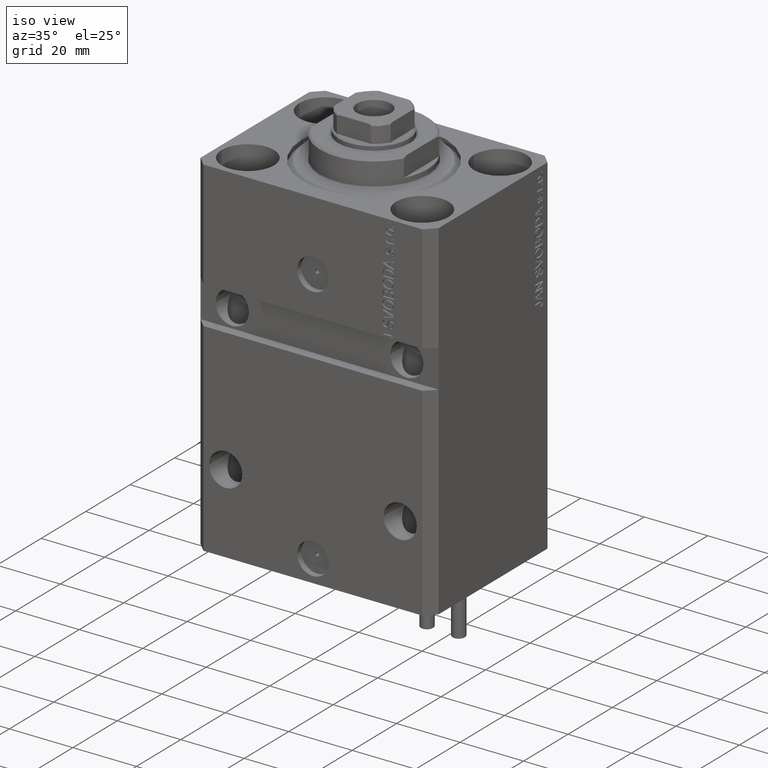
[diagram: clean part render]
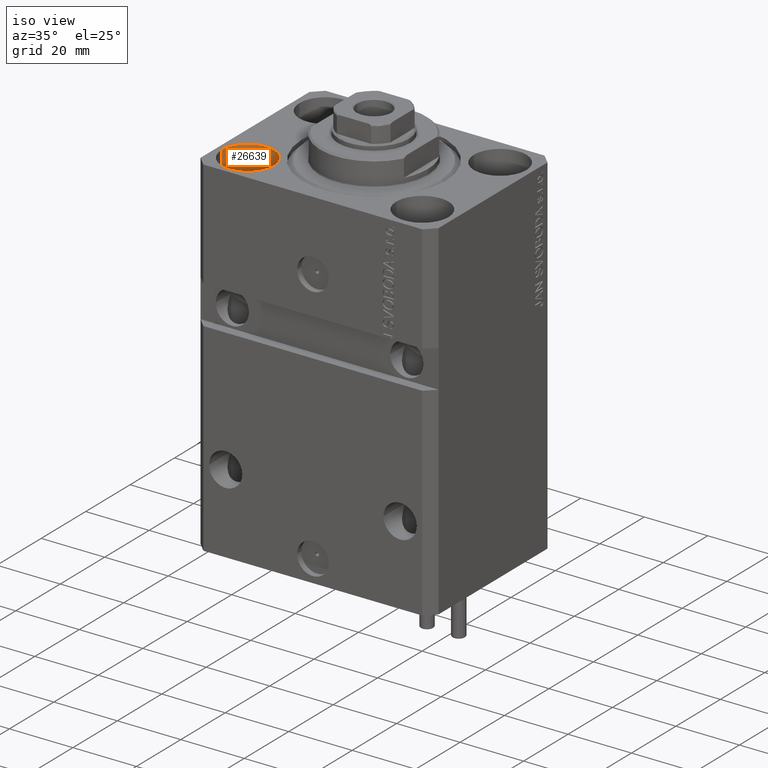
[diagram: same view with one face highlighted and labeled with its STEP entity id]
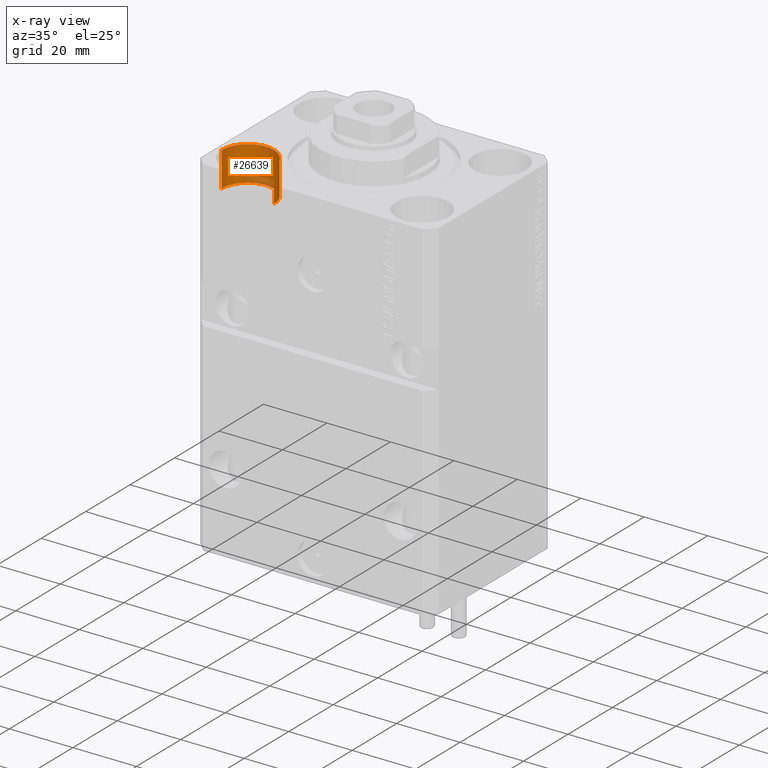
[diagram: x-ray of the same camera — body ghosted, the highlighted face saturated]
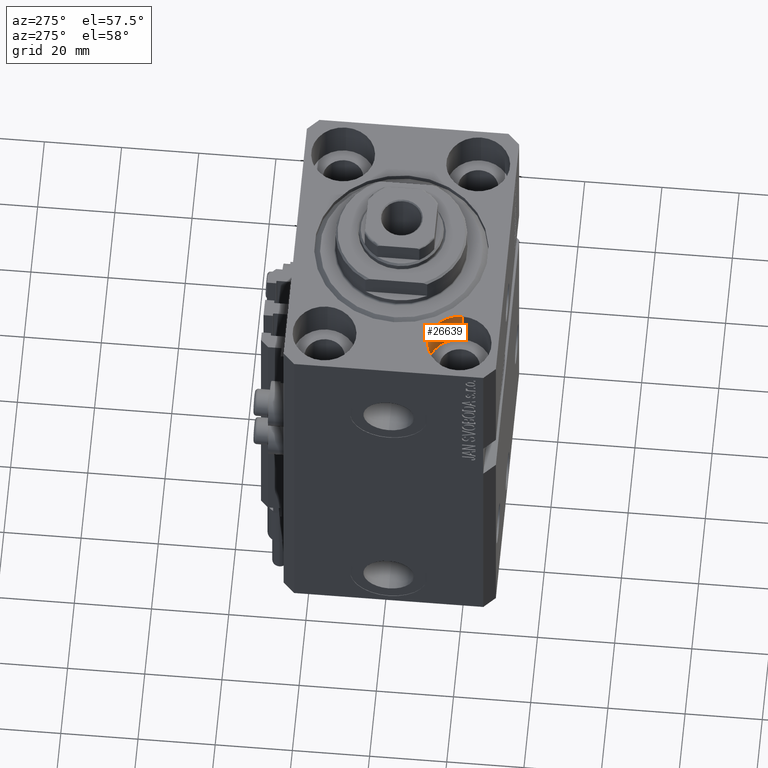
[diagram: same view with one face highlighted and labeled with its STEP entity id]
A machine part, iso view. The second image highlights one B-rep face of the part: STEP entity #26639.
The next image is the same camera in x-ray: the body ghosted, the highlighted face saturated — about 10% of this face is hidden behind the body in this view.
A second angle (auxiliary view) of the same face is appended — the face is thin or edge-on in the first view.
In plain terms, the highlighted cylindrical surface (edge-blend (fillet) strip) has radius 8.25 mm, axis along (0, 0, 1).
Its self-contained STEP definition (entity closure, byte-faithful):
#776 = DIRECTION ( 'NONE',  ( -0.000000000000000000, -0.000000000000000000, 1.000000000000000000 ) ) ;
#2643 = CIRCLE ( 'NONE', #18227, 8.250000000000000000 ) ;
#3194 = VERTEX_POINT ( 'NONE', #31482 ) ;
#4323 = ORIENTED_EDGE ( 'NONE', *, *, #13826, .T. ) ;
#4795 = LINE ( 'NONE', #20132, #18120 ) ;
#4893 = DIRECTION ( 'NONE',  ( 1.000000000000000000, 0.000000000000000000, 0.000000000000000000 ) ) ;
#5080 = CARTESIAN_POINT ( 'NONE',  ( -35.75000000000000711, -17.50000000000000000, -11.00000000000000000 ) ) ;
#7490 = CARTESIAN_POINT ( 'NONE',  ( -19.25000000000000355, -17.50000000000000000, -11.00000000000000000 ) ) ;
#8838 = ORIENTED_EDGE ( 'NONE', *, *, #17667, .F. ) ;
#9427 = EDGE_LOOP ( 'NONE', ( #44260, #8838, #4323, #11646 ) ) ;
#10692 = CYLINDRICAL_SURFACE ( 'NONE', #31848, 8.250000000000000000 ) ;
#11646 = ORIENTED_EDGE ( 'NONE', *, *, #15505, .T. ) ;
#13363 = EDGE_CURVE ( 'NONE', #38979, #3194, #34890, .T. ) ;
#13826 = EDGE_CURVE ( 'NONE', #46561, #38325, #4795, .T. ) ;
#14347 = FACE_OUTER_BOUND ( 'NONE', #9427, .T. ) ;
#14770 = CARTESIAN_POINT ( 'NONE',  ( -19.25000000000000355, -17.50000000000000000, 0.000000000000000000 ) ) ;
#15505 = EDGE_CURVE ( 'NONE', #38325, #3194, #32958, .T. ) ;
#16006 = DIRECTION ( 'NONE',  ( -0.000000000000000000, -0.000000000000000000, 1.000000000000000000 ) ) ;
#17667 = EDGE_CURVE ( 'NONE', #46561, #38979, #2643, .T. ) ;
#18120 = VECTOR ( 'NONE', #16006, 1000.000000000000000 ) ;
#18227 = AXIS2_PLACEMENT_3D ( 'NONE', #23410, #38279, #4893 ) ;
#20132 = CARTESIAN_POINT ( 'NONE',  ( -19.25000000000000355, -17.50000000000000000, -11.00000000000000000 ) ) ;
#22003 = AXIS2_PLACEMENT_3D ( 'NONE', #41853, #46235, #24079 ) ;
#23410 = CARTESIAN_POINT ( 'NONE',  ( -27.50000000000000355, -17.50000000000000000, -11.00000000000000000 ) ) ;
#24079 = DIRECTION ( 'NONE',  ( 1.000000000000000000, 0.000000000000000000, 0.000000000000000000 ) ) ;
#24827 = CARTESIAN_POINT ( 'NONE',  ( -27.50000000000000355, -17.50000000000000000, -11.00000000000000000 ) ) ;
#26639 = ADVANCED_FACE ( 'NONE', ( #14347 ), #10692, .F. ) ;
#30525 = CARTESIAN_POINT ( 'NONE',  ( -35.75000000000000711, -17.50000000000000000, -11.00000000000000000 ) ) ;
#31482 = CARTESIAN_POINT ( 'NONE',  ( -35.75000000000000711, -17.50000000000000000, 0.000000000000000000 ) ) ;
#31848 = AXIS2_PLACEMENT_3D ( 'NONE', #24827, #47224, #39442 ) ;
#32958 = CIRCLE ( 'NONE', #22003, 8.250000000000000000 ) ;
#34890 = LINE ( 'NONE', #30525, #35215 ) ;
#35215 = VECTOR ( 'NONE', #776, 1000.000000000000000 ) ;
#38279 = DIRECTION ( 'NONE',  ( 0.000000000000000000, 0.000000000000000000, 1.000000000000000000 ) ) ;
#38325 = VERTEX_POINT ( 'NONE', #14770 ) ;
#38979 = VERTEX_POINT ( 'NONE', #5080 ) ;
#39442 = DIRECTION ( 'NONE',  ( 1.000000000000000000, 0.000000000000000000, 0.000000000000000000 ) ) ;
#41853 = CARTESIAN_POINT ( 'NONE',  ( -27.50000000000000355, -17.50000000000000000, 0.000000000000000000 ) ) ;
#44260 = ORIENTED_EDGE ( 'NONE', *, *, #13363, .F. ) ;
#46235 = DIRECTION ( 'NONE',  ( 0.000000000000000000, 0.000000000000000000, 1.000000000000000000 ) ) ;
#46561 = VERTEX_POINT ( 'NONE', #7490 ) ;
#47224 = DIRECTION ( 'NONE',  ( -0.000000000000000000, -0.000000000000000000, 1.000000000000000000 ) ) ;